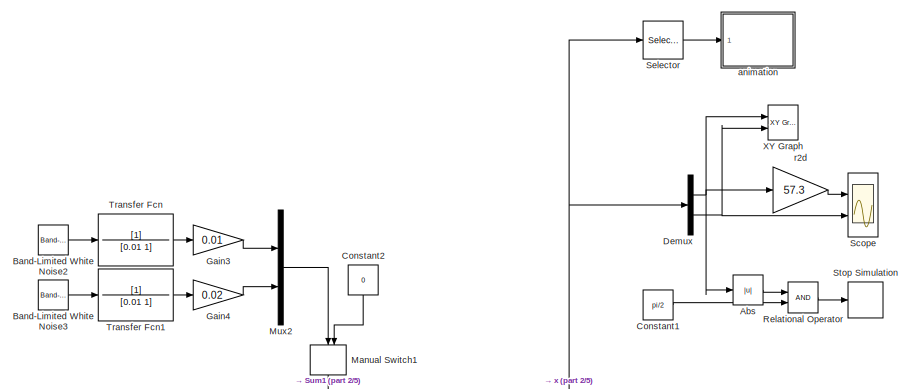
[diagram: root canvas - part 1/5, top center region]
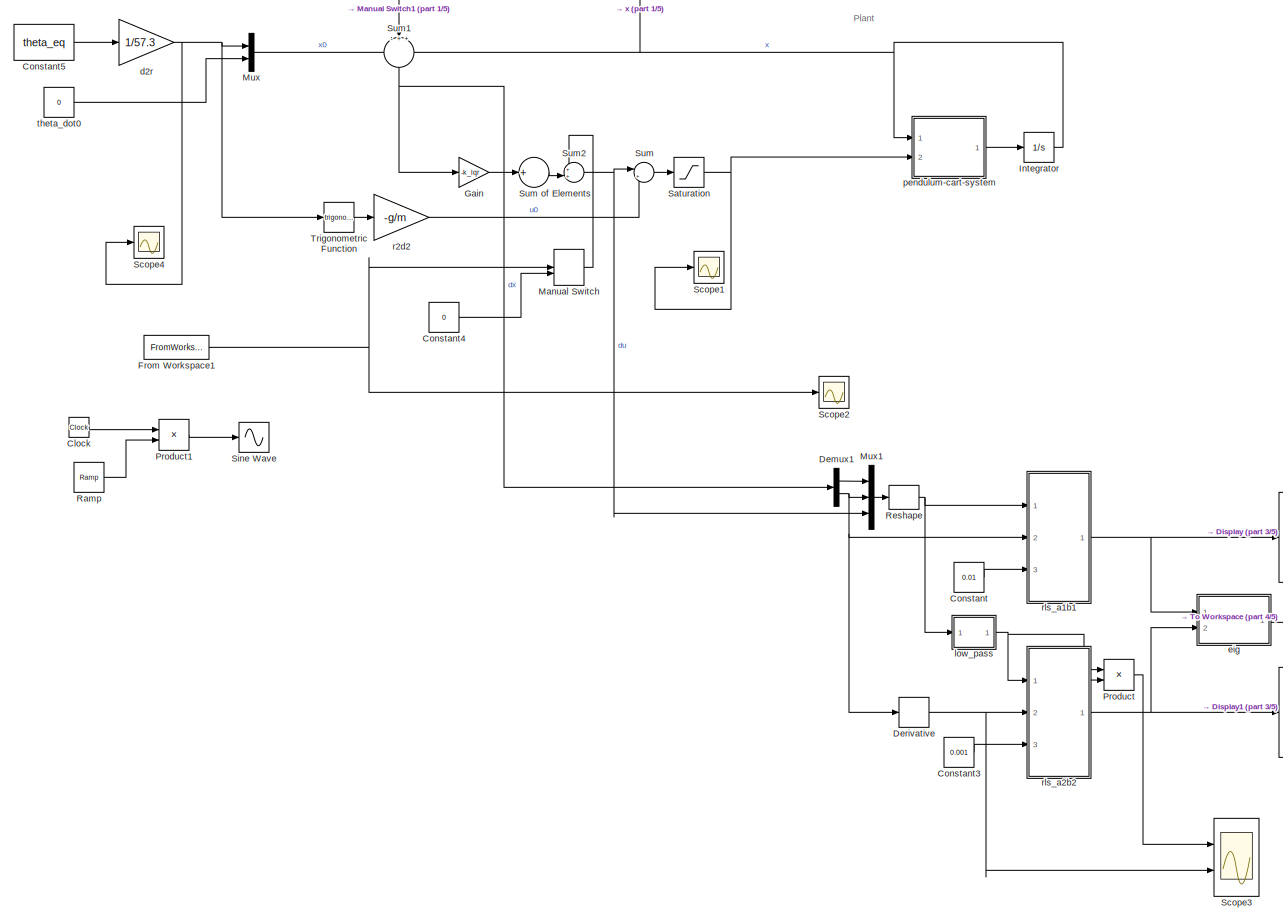
[diagram: root canvas - part 2/5, full width, middle band]
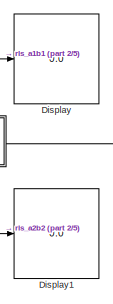
[diagram: root canvas - part 3/5, middle right region]
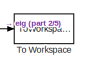
[diagram: root canvas - part 4/5, middle right region]
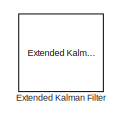
[diagram: root canvas - part 5/5, bottom right region]
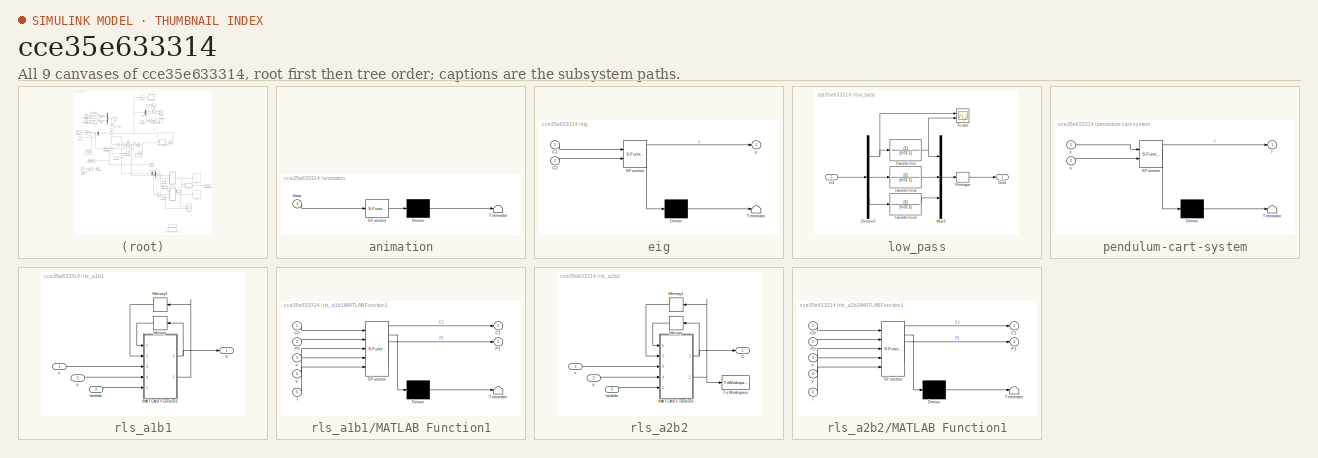
[diagram: thumbnail index - all 9 canvases of the model, root first then tree order]
MODEL slx_cce35e633314
KIND model
CONFIG AbsTol = auto
CONFIG EnableMultiTasking = off
CONFIG FixedStep = 0.005
CONFIG InitFcn = initialize
CONFIG MaxStep = auto
CONFIG MinStep = auto
CONFIG RelTol = 1e-3
CONFIG SampleTimeConstraint = Unconstrained
CONFIG Solver = ode2
CONFIG SolverName = ode2
CONFIG StartTime = 0.0
CONFIG StopTime = inf
BLOCK [Abs] Abs
  SaturateOnIntegerOverflow = off
BLOCK [Reference] Band-Limited White Noise2  REF=simulink/Sources/Band-Limited
White Noise
  Ports = [0, 1]
  SourceBlock = simulink/Sources/Band-Limited\nWhite Noise
  SourceProductBaseCode = SL
  SourceProductName = Simulink
  SourceType = Band-Limited White Noise.
BLOCK [Reference] Band-Limited White Noise3  REF=simulink/Sources/Band-Limited
White Noise
  Ports = [0, 1]
  SourceBlock = simulink/Sources/Band-Limited\nWhite Noise
  SourceProductBaseCode = SL
  SourceProductName = Simulink
  SourceType = Band-Limited White Noise.
BLOCK [Clock] Clock
BLOCK [Constant] Constant
  Value = 0.01
BLOCK [Constant] Constant1
  Value = pi/2
BLOCK [Constant] Constant2
  Value = 0
BLOCK [Constant] Constant3
  Value = 0.001
BLOCK [Constant] Constant4
  Value = 0
BLOCK [Constant] Constant5
  Value = theta_eq
BLOCK [Demux] Demux
  DisplayOption = bar
  Outputs = 2
  Ports = [1, 2]
BLOCK [Demux] Demux1
  DisplayOption = bar
  Outputs = 2
  Ports = [1, 2]
BLOCK [Derivative] Derivative
  CoefficientInTFapproximation = 0.01
BLOCK [Display] Display
  Decimation = 1
  Ports = [1]
BLOCK [Display] Display1
  Decimation = 1
  Ports = [1]
BLOCK [Reference] Extended Kalman Filter  REF=sharedTrackingLibrary/Extended Kalman Filter
  Ports = [2, 1]
  SourceBlock = sharedTrackingLibrary/Extended Kalman Filter
  SourceProductBaseCode = CT
  SourceProductName = Control System Toolbox
  SourceType = Extended Kalman Filter
BLOCK [FromWorkspace] From Workspace1
  VariableName = signalchirp
  ZeroCross = on
BLOCK [Gain] Gain
  Gain = -k_lqr
  OutDataTypeStr = Inherit: Inherit via internal rule
  ParamDataTypeStr = Inherit: Inherit via internal rule
  SaturateOnIntegerOverflow = off
BLOCK [Gain] Gain3
  Gain = 0.01
  OutDataTypeStr = Inherit: Inherit via internal rule
  ParamDataTypeStr = Inherit: Inherit via internal rule
  SaturateOnIntegerOverflow = off
BLOCK [Gain] Gain4
  Gain = 0.02
  OutDataTypeStr = Inherit: Inherit via internal rule
  ParamDataTypeStr = Inherit: Inherit via internal rule
  SaturateOnIntegerOverflow = off
BLOCK [Integrator] Integrator
  InitialCondition = x0
  Ports = [1, 1]
BLOCK [ManualSwitch] Manual Switch
BLOCK [ManualSwitch] Manual Switch1
  CurrentSetting = 0
BLOCK [Mux] Mux
  DisplayOption = bar
  Inputs = 2
  Ports = [2, 1]
BLOCK [Mux] Mux1
  DisplayOption = bar
  Inputs = 3
  Ports = [3, 1]
BLOCK [Mux] Mux2
  DisplayOption = bar
  Inputs = 2
  Ports = [2, 1]
BLOCK [Product] Product
  InputSameDT = off
  Multiplication = Matrix(*)
  OutDataTypeStr = Inherit: Inherit via internal rule
  Ports = [2, 1]
  RndMeth = Floor
  SaturateOnIntegerOverflow = off
BLOCK [Product] Product1
  InputSameDT = off
  OutDataTypeStr = Inherit: Inherit via internal rule
  Ports = [2, 1]
  RndMeth = Floor
  SaturateOnIntegerOverflow = off
BLOCK [Reference] Ramp  REF=simulink/Sources/Ramp
  Ports = [0, 1]
  SourceBlock = simulink/Sources/Ramp
  SourceProductBaseCode = SL
  SourceProductName = Simulink
  SourceType = Ramp
BLOCK [RelationalOperator] Relational Operator
  InputSameDT = off
  OutDataTypeStr = boolean
  Ports = [2, 1]
  RndMeth = Simplest
BLOCK [Reshape] Reshape
  OutputDimensionality = Row vector (2-D)
  Ports = [1, 1]
BLOCK [Saturate] Saturation
  InputPortMap = u0
  LowerLimit = umin
  Ports = [1, 1]
  UpperLimit = umax
BLOCK [Scope] Scope
  Floating = off
  NumInputPorts = 2
  Ports = [2]
  ScopeSpecificationString = Simulink.scopes.TimeScopeBlockCfg('CurrentConfiguration', extmgr.ConfigurationSet(extmgr.Configuration('Core','General UI',true),extmgr.Configuration('Core','Source UI',true),extmgr.Configuration('Sources','WiredSimulink',true),extmgr.Configuration('Visuals','Time Domain',true,'SerializedDisplays',{struct('MinYLimReal','-0.86111','MaxYLimReal','3.285','YLabelReal','','MinYLimMag','0.00000','MaxYLi...<+1959ch>
BLOCK [Scope] Scope1
  Floating = off
  NumInputPorts = 1
  Ports = [1]
  ScopeSpecificationString = Simulink.scopes.TimeScopeBlockCfg('CurrentConfiguration', extmgr.ConfigurationSet(extmgr.Configuration('Core','General UI',true),extmgr.Configuration('Core','Source UI',true),extmgr.Configuration('Sources','WiredSimulink',true,'DataLoggingVariableName','ScopeData1'),extmgr.Configuration('Visuals','Time Domain',true,'SerializedDisplays',{struct('MinYLimReal','-5.42131','MaxYLimReal','4.62412','YLab...<+1468ch>
BLOCK [Scope] Scope2
  Floating = off
  NumInputPorts = 1
  Ports = [1]
  ScopeSpecificationString = Simulink.scopes.TimeScopeBlockCfg('CurrentConfiguration', extmgr.ConfigurationSet(extmgr.Configuration('Core','General UI',true),extmgr.Configuration('Core','Source UI',true),extmgr.Configuration('Sources','WiredSimulink',true,'DataLoggingVariableName','ScopeData3'),extmgr.Configuration('Visuals','Time Domain',true,'SerializedDisplays',{struct('MinYLimReal','-1.00000','MaxYLimReal','1.00000','YLab...<+1474ch>
BLOCK [Scope] Scope3
  Floating = off
  NumInputPorts = 2
  Ports = [2]
  ScopeSpecificationString = Simulink.scopes.TimeScopeBlockCfg('CurrentConfiguration', extmgr.ConfigurationSet(extmgr.Configuration('Core','General UI',true),extmgr.Configuration('Core','Source UI',true),extmgr.Configuration('Sources','WiredSimulink',true,'DataLoggingVariableName','ScopeData2'),extmgr.Configuration('Visuals','Time Domain',true,'SerializedDisplays',{struct('MinYLimReal','-1.2209','MaxYLimReal','1.22026','YLabe...<+1473ch>
BLOCK [Scope] Scope4
  Floating = off
  NumInputPorts = 1
  Ports = [1]
  ScopeSpecificationString = Simulink.scopes.TimeScopeBlockCfg('CurrentConfiguration', extmgr.ConfigurationSet(extmgr.Configuration('Core','General UI',true),extmgr.Configuration('Core','Source UI',true),extmgr.Configuration('Sources','WiredSimulink',true,'DataLoggingVariableName','ScopeData4'),extmgr.Configuration('Visuals','Time Domain',true,'SerializedDisplays',{struct('MinYLimReal','-1.00000','MaxYLimReal','1.00000','YLab...<+1436ch>
BLOCK [Selector] Selector
  IndexOptions = Index vector (dialog)
  Indices = [1]
  InputPortWidth = 2
  OutputSizes = 1
  Ports = [1, 1]
BLOCK [Sin] Sine Wave
  Ports = [1, 1]
  SampleTime = 0
  TimeSource = Use external signal
BLOCK [Stop] Stop Simulation
BLOCK [Sum] Sum
  IconShape = round
  InputSameDT = off
  Inputs = |++
  OutDataTypeStr = Inherit: Inherit via internal rule
  Ports = [2, 1]
  SaturateOnIntegerOverflow = off
BLOCK [Sum] Sum of Elements
  InputSameDT = off
  Inputs = +
  OutDataTypeStr = Inherit: Inherit via internal rule
  Ports = [1, 1]
  SaturateOnIntegerOverflow = off
BLOCK [Sum] Sum1
  IconShape = round
  InputSameDT = off
  Inputs = -++
  OutDataTypeStr = Inherit: Inherit via internal rule
  Ports = [3, 1]
  SaturateOnIntegerOverflow = off
BLOCK [Sum] Sum2
  IconShape = round
  InputSameDT = off
  Inputs = ++|
  OutDataTypeStr = Inherit: Inherit via internal rule
  Ports = [2, 1]
  SaturateOnIntegerOverflow = off
BLOCK [ToWorkspace] To Workspace
  FixptAsFi = on
  MaxDataPoints = inf
  Ports = [1]
  SampleTime = -1
  Save2DSignal = 3-D array (concatenate along third dimension)
  SaveFormat = Timeseries
  VariableName = eigens
BLOCK [TransferFcn] Transfer Fcn
  Denominator = [0.01 1]
BLOCK [TransferFcn] Transfer Fcn1
  Denominator = [0.01 1]
BLOCK [Trigonometry] Trigonometric Function
  Ports = [1, 1]
BLOCK [Reference] XY Graph  REF=simulink/Sinks/XY Graph
  Ports = [2]
  SourceBlock = simulink/Sinks/XY Graph
  SourceProductBaseCode = SL
  SourceProductName = Simulink
  SourceType = XY scope.
BLOCK [SubSystem] animation
  ErrorFcn = Stateflow.Translate.translate
  PermitHierarchicalResolution = ExplicitOnly
  Ports = [1]
  RequestExecContextInheritance = off
  SFBlockType = MATLAB Function
  TreatAsAtomicUnit = on
BLOCK [Demux] animation/ Demux 
  Outputs = 1
  Ports = [1, 1]
BLOCK [S-Function] animation/ SFunction 
  EnableBusSupport = on
  FunctionName = sf_sfun
  Parameters = R,r
  PortCounts = [1 1]
  Ports = [1, 1]
  SFcnIsStateOwnerBlock = off
  SFunctionDeploymentMode = off
  Tag = Stateflow S-Function Ball_Slope_Sim 1
BLOCK [Terminator] animation/ Terminator 
BLOCK [Inport] animation/theta
  IconDisplay = Port number
BLOCK [Gain] d2r
  Gain = 1/57.3
  OutDataTypeStr = Inherit: Inherit via internal rule
  ParamDataTypeStr = Inherit: Inherit via internal rule
  SaturateOnIntegerOverflow = off
BLOCK [SubSystem] eig
  ErrorFcn = Stateflow.Translate.translate
  PermitHierarchicalResolution = ExplicitOnly
  Ports = [2, 1]
  RequestExecContextInheritance = off
  SFBlockType = MATLAB Function
  TreatAsAtomicUnit = on
BLOCK [Demux] eig/ Demux 
  Outputs = 1
  Ports = [1, 1]
BLOCK [S-Function] eig/ SFunction 
  EnableBusSupport = on
  FunctionName = sf_sfun
  PortCounts = [2 2]
  Ports = [2, 2]
  SFcnIsStateOwnerBlock = off
  SFunctionDeploymentMode = off
  Tag = Stateflow S-Function Ball_Slope_Sim 5
BLOCK [Terminator] eig/ Terminator 
BLOCK [Inport] eig/C1
  IconDisplay = Port number
BLOCK [Inport] eig/C2
  IconDisplay = Port number
  Port = 2
BLOCK [Outport] eig/y
  IconDisplay = Port number
BLOCK [SubSystem] low_pass
  Ports = [1, 1]
  RequestExecContextInheritance = off
BLOCK [Demux] low_pass/Demux3
  DisplayOption = bar
  Outputs = 3
  Ports = [1, 3]
BLOCK [Inport] low_pass/In1
  IconDisplay = Port number
BLOCK [Mux] low_pass/Mux2
  DisplayOption = bar
  Inputs = 3
  Ports = [3, 1]
BLOCK [Outport] low_pass/Out1
  IconDisplay = Port number
BLOCK [Reshape] low_pass/Reshape
  OutputDimensionality = Row vector (2-D)
  Ports = [1, 1]
BLOCK [Scope] low_pass/Scope
  Floating = off
  NumInputPorts = 2
  Ports = [2]
  ScopeSpecificationString = Simulink.scopes.TimeScopeBlockCfg('CurrentConfiguration', extmgr.ConfigurationSet(extmgr.Configuration('Core','General UI',true),extmgr.Configuration('Core','Source UI',true),extmgr.Configuration('Sources','WiredSimulink',true,'DataLoggingVariableName','ScopeData1'),extmgr.Configuration('Visuals','Time Domain',true,'SerializedDisplays',{struct('MinYLimReal','-0.10281','MaxYLimReal','0.05691','YLab...<+1482ch>
BLOCK [TransferFcn] low_pass/Transfer Fcn
  Denominator = [0.01 1]
BLOCK [TransferFcn] low_pass/Transfer Fcn1
  Denominator = [0.01 1]
BLOCK [TransferFcn] low_pass/Transfer Fcn2
  Denominator = [0.01 1]
BLOCK [SubSystem] pendulum-cart-system
  ErrorFcn = Stateflow.Translate.translate
  PermitHierarchicalResolution = ExplicitOnly
  Ports = [2, 1]
  RequestExecContextInheritance = off
  SFBlockType = MATLAB Function
  TreatAsAtomicUnit = on
BLOCK [Demux] pendulum-cart-system/ Demux 
  Outputs = 1
  Ports = [1, 1]
BLOCK [S-Function] pendulum-cart-system/ SFunction 
  EnableBusSupport = on
  FunctionName = sf_sfun
  Parameters = R,c,g,m,sign
  PortCounts = [2 2]
  Ports = [2, 2]
  SFcnIsStateOwnerBlock = off
  SFunctionDeploymentMode = off
  Tag = Stateflow S-Function Ball_Slope_Sim 2
BLOCK [Terminator] pendulum-cart-system/ Terminator 
BLOCK [Outport] pendulum-cart-system/f
  IconDisplay = Port number
BLOCK [Inport] pendulum-cart-system/u
  IconDisplay = Port number
  Port = 2
BLOCK [Inport] pendulum-cart-system/x
  IconDisplay = Port number
BLOCK [Gain] r2d
  Gain = 57.3
  OutDataTypeStr = Inherit: Inherit via internal rule
  ParamDataTypeStr = Inherit: Inherit via internal rule
  SaturateOnIntegerOverflow = off
BLOCK [Gain] r2d2
  Gain = -g/m
  OutDataTypeStr = Inherit: Inherit via internal rule
  ParamDataTypeStr = Inherit: Inherit via internal rule
  SaturateOnIntegerOverflow = off
BLOCK [SubSystem] rls_a1b1
  Ports = [3, 1]
  RequestExecContextInheritance = off
BLOCK [Outport] rls_a1b1/C
  IconDisplay = Port number
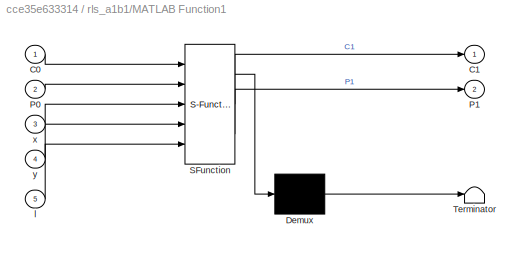
BLOCK [SubSystem] rls_a1b1/MATLAB Function1
  ErrorFcn = Stateflow.Translate.translate
  PermitHierarchicalResolution = ExplicitOnly
  Ports = [5, 2]
  RequestExecContextInheritance = off
  SFBlockType = MATLAB Function
  SystemSampleTime = 0.1
  TreatAsAtomicUnit = on
BLOCK [Demux] rls_a1b1/MATLAB Function1/ Demux 
  Outputs = 1
  Ports = [1, 1]
BLOCK [S-Function] rls_a1b1/MATLAB Function1/ SFunction 
  EnableBusSupport = on
  FunctionName = sf_sfun
  PortCounts = [5 3]
  Ports = [5, 3]
  SFcnIsStateOwnerBlock = off
  SFunctionDeploymentMode = off
  Tag = Stateflow S-Function Ball_Slope_Sim 4
BLOCK [Terminator] rls_a1b1/MATLAB Function1/ Terminator 
BLOCK [Inport] rls_a1b1/MATLAB Function1/C0
  IconDisplay = Port number
BLOCK [Outport] rls_a1b1/MATLAB Function1/C1
  IconDisplay = Port number
BLOCK [Inport] rls_a1b1/MATLAB Function1/P0
  IconDisplay = Port number
  Port = 2
BLOCK [Outport] rls_a1b1/MATLAB Function1/P1
  IconDisplay = Port number
  Port = 2
BLOCK [Inport] rls_a1b1/MATLAB Function1/l
  IconDisplay = Port number
  Port = 5
BLOCK [Inport] rls_a1b1/MATLAB Function1/x
  IconDisplay = Port number
  Port = 3
BLOCK [Inport] rls_a1b1/MATLAB Function1/y
  IconDisplay = Port number
  Port = 4
BLOCK [Memory] rls_a1b1/Memory
  InitialCondition = C0
BLOCK [Memory] rls_a1b1/Memory1
  InitialCondition = P0
BLOCK [Inport] rls_a1b1/lambda
  IconDisplay = Port number
  Port = 3
BLOCK [Inport] rls_a1b1/x
  IconDisplay = Port number
BLOCK [Inport] rls_a1b1/y
  IconDisplay = Port number
  Port = 2
BLOCK [SubSystem] rls_a2b2
  Ports = [3, 1]
  RequestExecContextInheritance = off
BLOCK [Outport] rls_a2b2/C
  IconDisplay = Port number
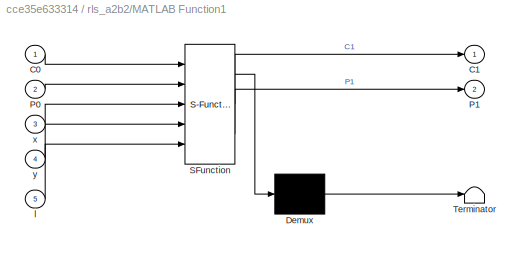
BLOCK [SubSystem] rls_a2b2/MATLAB Function1
  ErrorFcn = Stateflow.Translate.translate
  PermitHierarchicalResolution = ExplicitOnly
  Ports = [5, 2]
  RequestExecContextInheritance = off
  SFBlockType = MATLAB Function
  SystemSampleTime = 0.1
  TreatAsAtomicUnit = on
BLOCK [Demux] rls_a2b2/MATLAB Function1/ Demux 
  Outputs = 1
  Ports = [1, 1]
BLOCK [S-Function] rls_a2b2/MATLAB Function1/ SFunction 
  EnableBusSupport = on
  FunctionName = sf_sfun
  PortCounts = [5 3]
  Ports = [5, 3]
  SFcnIsStateOwnerBlock = off
  SFunctionDeploymentMode = off
  Tag = Stateflow S-Function Ball_Slope_Sim 3
BLOCK [Terminator] rls_a2b2/MATLAB Function1/ Terminator 
BLOCK [Inport] rls_a2b2/MATLAB Function1/C0
  IconDisplay = Port number
BLOCK [Outport] rls_a2b2/MATLAB Function1/C1
  IconDisplay = Port number
BLOCK [Inport] rls_a2b2/MATLAB Function1/P0
  IconDisplay = Port number
  Port = 2
BLOCK [Outport] rls_a2b2/MATLAB Function1/P1
  IconDisplay = Port number
  Port = 2
BLOCK [Inport] rls_a2b2/MATLAB Function1/l
  IconDisplay = Port number
  Port = 5
BLOCK [Inport] rls_a2b2/MATLAB Function1/x
  IconDisplay = Port number
  Port = 3
BLOCK [Inport] rls_a2b2/MATLAB Function1/y
  IconDisplay = Port number
  Port = 4
BLOCK [Memory] rls_a2b2/Memory
  InitialCondition = C0
BLOCK [Memory] rls_a2b2/Memory1
  InitialCondition = P0
BLOCK [ToWorkspace] rls_a2b2/To Workspace
  FixptAsFi = on
  MaxDataPoints = inf
  Ports = [1]
  SampleTime = -1
  Save2DSignal = 3-D array (concatenate along third dimension)
  SaveFormat = Timeseries
  VariableName = P2
BLOCK [Inport] rls_a2b2/lambda
  IconDisplay = Port number
  Port = 3
BLOCK [Inport] rls_a2b2/x
  IconDisplay = Port number
BLOCK [Inport] rls_a2b2/y
  IconDisplay = Port number
  Port = 2
BLOCK [Constant] theta_dot0 
  Value = 0
ANNOTATION (root): Plant
LINE Abs:1 -> Relational Operator:1
LINE Band-Limited White Noise2:1 -> Transfer Fcn:1
LINE Band-Limited White Noise3:1 -> Transfer Fcn1:1
LINE Clock:1 -> Product1:1
LINE Constant1:1 -> Relational Operator:2
LINE Constant2:1 -> Manual Switch1:2
LINE Constant3:1 -> rls_a2b2:3
LINE Constant4:1 -> Manual Switch:2
LINE Constant5:1 -> d2r:1
LINE Constant:1 -> rls_a1b1:3
LINE Demux1:1 -> Mux1:1
NET Demux1:2 -> Derivative:1, Mux1:2, rls_a1b1:2
NET Demux:1 -> Abs:1, XY Graph:1, r2d:1
NET Demux:2 -> Scope:2, XY Graph:2
NET Derivative:1 -> Scope3:2, rls_a2b2:2
NET From Workspace1:1 -> Manual Switch:1, Scope2:1
LINE Gain3:1 -> Mux2:1
LINE Gain4:1 -> Mux2:2
LINE Gain:1 -> Sum of Elements:1
NET Integrator:1 -> Demux:1, Selector:1, Sum1:3, pendulum-cart-system:1
LINE Manual Switch1:1 -> Sum1:2
LINE Manual Switch:1 -> Sum2:1
LINE Mux1:1 -> Reshape:1
LINE Mux2:1 -> Manual Switch1:1
LINE Mux:1 -> Sum1:1
LINE Product1:1 -> Sine Wave:1
LINE Product:1 -> Scope3:1
LINE Ramp:1 -> Product1:2
LINE Relational Operator:1 -> Stop Simulation:1
NET Reshape:1 -> low_pass:1, rls_a1b1:1
NET Saturation:1 -> Scope1:1, pendulum-cart-system:2
LINE Selector:1 -> animation:1
LINE Sum of Elements:1 -> Sum2:2
NET Sum1:1 -> Demux1:1, Gain:1
NET Sum2:1 -> Mux1:3, Sum:1
LINE Sum:1 -> Saturation:1
LINE Transfer Fcn1:1 -> Gain4:1
LINE Transfer Fcn:1 -> Gain3:1
LINE Trigonometric Function:1 -> r2d2:1
NET d2r:1 -> Mux:1, Scope4:1, Trigonometric Function:1
LINE eig:1 -> To Workspace:1
NET low_pass/Demux3:1 -> low_pass/Scope:1, low_pass/Transfer Fcn:1
LINE low_pass/Demux3:2 -> low_pass/Transfer Fcn1:1
LINE low_pass/Demux3:3 -> low_pass/Transfer Fcn2:1
LINE low_pass/In1:1 -> low_pass/Demux3:1
LINE low_pass/Mux2:1 -> low_pass/Reshape:1
LINE low_pass/Reshape:1 -> low_pass/Out1:1
LINE low_pass/Transfer Fcn1:1 -> low_pass/Mux2:2
LINE low_pass/Transfer Fcn2:1 -> low_pass/Mux2:3
NET low_pass/Transfer Fcn:1 -> low_pass/Mux2:1, low_pass/Scope:2
NET low_pass:1 -> Product:1, rls_a2b2:1
LINE pendulum-cart-system:1 -> Integrator:1
LINE r2d2:1 -> Sum:2
LINE r2d:1 -> Scope:1
NET rls_a1b1/MATLAB Function1:1 -> rls_a1b1/C:1, rls_a1b1/Memory:1
LINE rls_a1b1/MATLAB Function1:2 -> rls_a1b1/Memory1:1
LINE rls_a1b1/Memory1:1 -> rls_a1b1/MATLAB Function1:2
LINE rls_a1b1/Memory:1 -> rls_a1b1/MATLAB Function1:1
LINE rls_a1b1/lambda:1 -> rls_a1b1/MATLAB Function1:5
LINE rls_a1b1/x:1 -> rls_a1b1/MATLAB Function1:3
LINE rls_a1b1/y:1 -> rls_a1b1/MATLAB Function1:4
NET rls_a1b1:1 -> Display:1, eig:1
NET rls_a2b2/MATLAB Function1:1 -> rls_a2b2/C:1, rls_a2b2/Memory:1
NET rls_a2b2/MATLAB Function1:2 -> rls_a2b2/Memory1:1, rls_a2b2/To Workspace:1
LINE rls_a2b2/Memory1:1 -> rls_a2b2/MATLAB Function1:2
LINE rls_a2b2/Memory:1 -> rls_a2b2/MATLAB Function1:1
LINE rls_a2b2/lambda:1 -> rls_a2b2/MATLAB Function1:5
LINE rls_a2b2/x:1 -> rls_a2b2/MATLAB Function1:3
LINE rls_a2b2/y:1 -> rls_a2b2/MATLAB Function1:4
NET rls_a2b2:1 -> Display1:1, Product:2, eig:2
LINE theta_dot0 :1 -> Mux:2
note: NET lines group one-source signal fan-out (src -> all destinations, sorted); 1:1 wires keep LINE
CHART animation states=1 transitions=1
  STATE_LABEL 'eML_blk_kernel()'
  STATE_LABEL "SCRIPT:\nfunction fcn(theta,R, r)\n\n\nt = get(gca,'Children');\n\nx = (R+r)*sin(theta);\ny = (R+r)*cos(theta);\nS = makehgtform('translate',[x y 0]);\n\nset(t(2),'Matrix',S);\n\ndrawnow\n\nend\n"
CHART pendulum-cart-system states=1 transitions=1
  STATE_LABEL 'eML_blk_kernel()'
  STATE_LABEL 'SCRIPT:\nfunction f = fcn(x,u, m, R, c, g, sign)\n\n% x(1): ball anglular position\n% x(2): ball angular speed\n\n\nf = zeros(2,1);\n\nf(1) = x(2);\nf(2) = sign*g*sin(x(1))/R  - c/m*x(2) + 1/(m*R)*u;\n\n\nend\n'
CHART rls_a2b2/MATLAB Function1 states=1 transitions=1
  STATE_LABEL 'eML_blk_kernel()'
  STATE_LABEL "SCRIPT:\nfunction [C1, P1] = fcn(C0, P0, x, y, l)\n% RLS\n% C0 : the last parameters;\n% P0 : the last convariance matrix;\n% x : the new measured regressor data;\n% y : the new measurement;\n% l : forgetting fector\n\nK1 = P0*x'/(x*P0*x'+l);\nC1 = C0+K1*(y-x*C0);\nP1 = P0-K1*x*P0;\n\nend\n\n\n"
CHART rls_a1b1/MATLAB Function1 states=1 transitions=1
  STATE_LABEL 'eML_blk_kernel()'
  STATE_LABEL "SCRIPT:\nfunction [C1,P1] = fcn(C0,P0,x,y,l)\n% RLS\n% C0 : the last parameters;\n% P0 : the last convariance matrix;\n% x : the new measured regressor data;\n% y : the new measurement;\n% l : forgetting fector\n\nK1 = P0*x'/(x*P0*x'+l);\nC1 = C0+K1*(y-x*C0);\nP1 = P0-K1*x*P0;\n\nend\n\n\n"
CHART eig states=1 transitions=1
  STATE_LABEL 'eML_blk_kernel()'
  STATE_LABEL 'SCRIPT:\nfunction y = fcn(C1,C2)\n\nA = [C1(1) C1(2); C2(1) C2(2)];\n\nz = eig(A);\n\ny = z;\nend\n'
